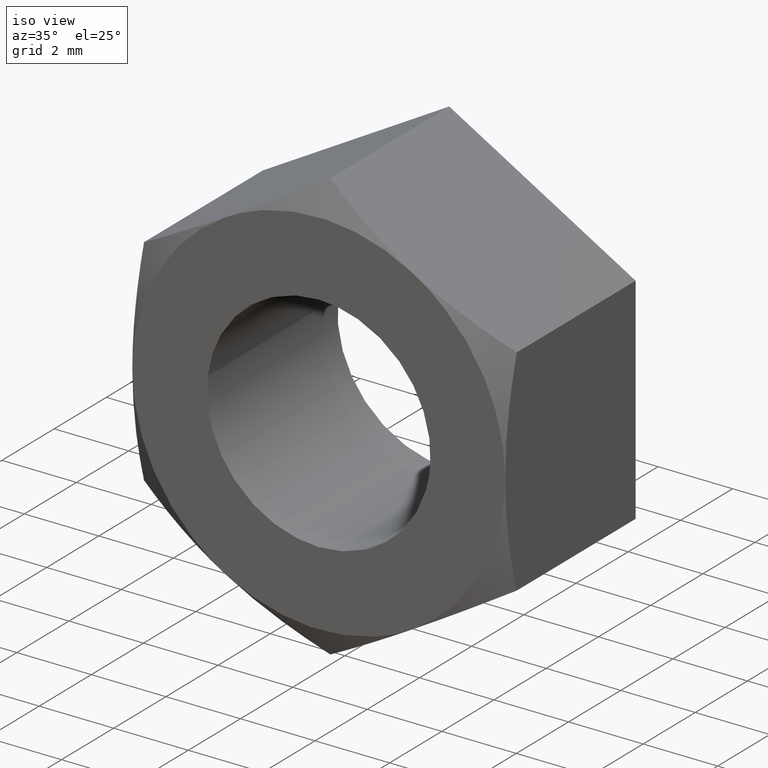
[diagram: clean part render]
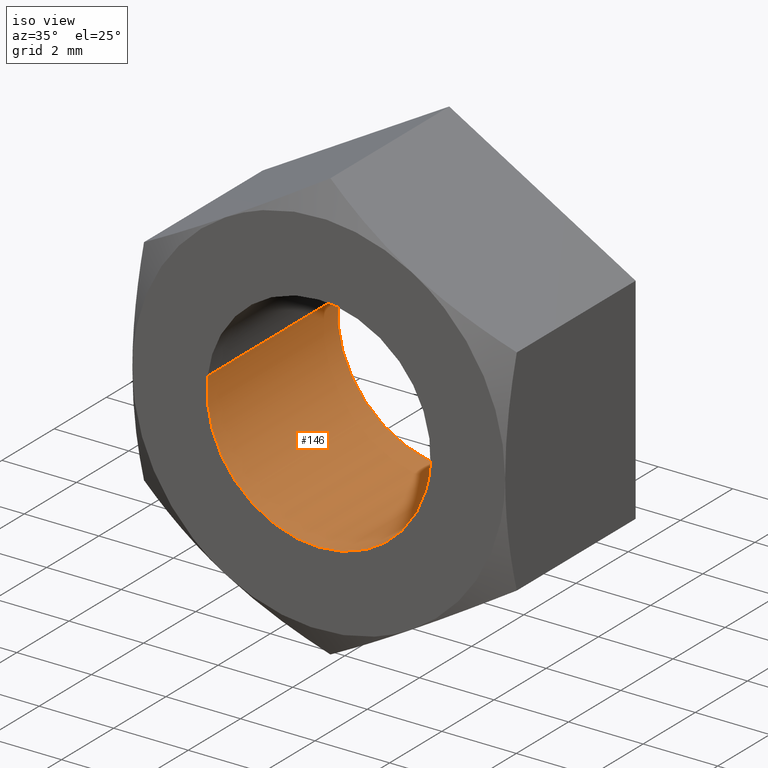
[diagram: same view with one face highlighted and labeled with its STEP entity id]
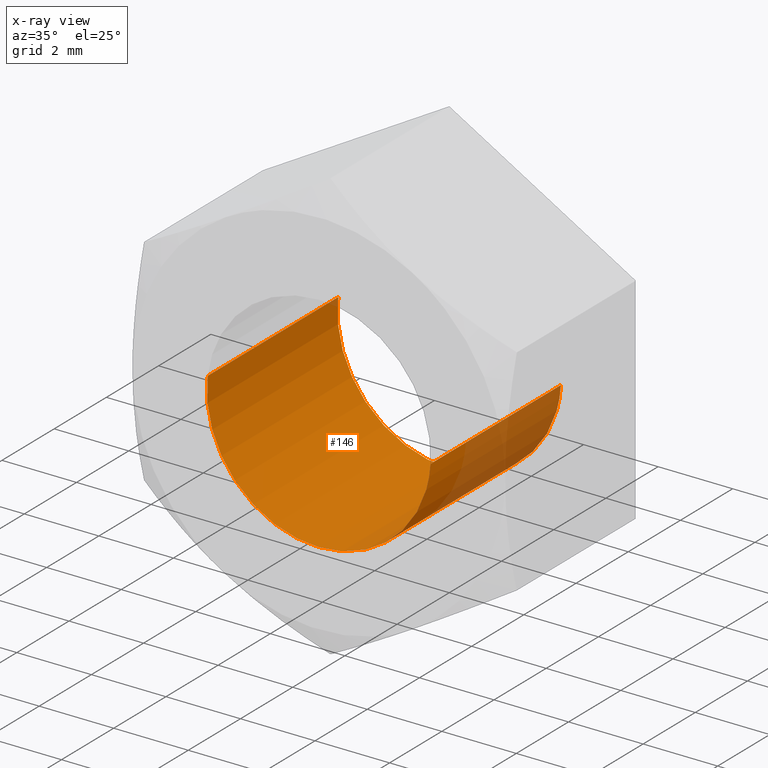
[diagram: x-ray of the same camera — body ghosted, the highlighted face saturated]
A machine part, iso view. The second image highlights one B-rep face of the part: STEP entity #146.
The next image is the same camera in x-ray: the body ghosted, the highlighted face saturated — about 12% of this face is hidden behind the body in this view.
In plain terms, the highlighted face is a freeform B-spline surface patch.
Its self-contained STEP definition (entity closure, byte-faithful):
#44=CARTESIAN_POINT('',(-2.979028579091000,0.125000000000000,0.354102703970275));
#45=CARTESIAN_POINT('',(-2.989162846345817,0.125000000000000,0.268844185913933));
#46=CARTESIAN_POINT('',(-2.994404395265600,0.125000000000000,0.183145618604571));
#47=CARTESIAN_POINT('',(-3.177550013870171,0.125000000000000,-2.811258776661029));
#48=CARTESIAN_POINT('',(-0.183145618604571,0.125000000000000,-2.994404395265600));
#49=CARTESIAN_POINT('',(2.811258776661029,0.125000000000000,-3.177550013870171));
#50=CARTESIAN_POINT('',(2.994404395265600,0.125000000000000,-0.183145618604571));
#51=CARTESIAN_POINT('',(-2.979028579091000,-5.128125000000002,0.354102703970275));
#52=CARTESIAN_POINT('',(-2.989162846345817,-5.128125000000001,0.268844185913933));
#53=CARTESIAN_POINT('',(-2.994404395265600,-5.128125000000001,0.183145618604571));
#54=CARTESIAN_POINT('',(-3.177550013870171,-5.128125000000001,-2.811258776661029));
#55=CARTESIAN_POINT('',(-0.183145618604571,-5.128125000000001,-2.994404395265600));
#56=CARTESIAN_POINT('',(2.811258776661029,-5.128125000000001,-3.177550013870171));
#57=CARTESIAN_POINT('',(2.994404395265600,-5.128125000000001,-0.183145618604571));
#65=(BOUNDED_SURFACE()B_SPLINE_SURFACE(2,1,((#44,#51),(#45,#52),(#46,#53),(#47,#54),(#48,#55),(#49,#56),(#50,#57)),.UNSPECIFIED.,.F.,.F.,.U.)B_SPLINE_SURFACE_WITH_KNOTS((3,2,2,3),(2,2),(0.0,0.198822509939086,5.169385258416225,10.139948006893370),(0.0,5.253125000000002),.UNSPECIFIED.)GEOMETRIC_REPRESENTATION_ITEM()RATIONAL_B_SPLINE_SURFACE(((0.977505800795127,0.977505800795127),(0.988284271247462,0.988284271247462),(1.0,1.0),(0.707106781186548,0.707106781186548),(1.0,1.0),(0.707106781186548,0.707106781186548),(1.0,1.0)))REPRESENTATION_ITEM('')SURFACE());
#66=CARTESIAN_POINT('',(-2.979029048847217,-3.904214E-015,0.354098751916197));
#67=VERTEX_POINT('',#66);
#68=CARTESIAN_POINT('',(0.0,0.0,-3.0));
#69=VERTEX_POINT('',#68);
#70=CARTESIAN_POINT('',(-2.979029048847217,-3.904214E-015,0.354098751916197));
#71=CARTESIAN_POINT('',(-3.0,0.0,0.177670362038779));
#72=CARTESIAN_POINT('',(-3.0,0.0,0.0));
#73=CARTESIAN_POINT('',(-3.0,0.0,-3.0));
#74=CARTESIAN_POINT('',(0.0,0.0,-3.0));
#82=(BOUNDED_CURVE()B_SPLINE_CURVE(2,(#70,#71,#72,#73,#74),.UNSPECIFIED.,.F.,.U.)B_SPLINE_CURVE_WITH_KNOTS((3,2,3),(0.229562697719614,0.250000000000000,0.500000000000000),.UNSPECIFIED.)CURVE()GEOMETRIC_REPRESENTATION_ITEM()RATIONAL_B_SPLINE_CURVE((0.956027193637312,0.976056211004937,1.0,0.707106781186548,1.0))REPRESENTATION_ITEM(''));
#83=EDGE_CURVE('',#67,#69,#82,.T.);
#84=ORIENTED_EDGE('',*,*,#83,.F.);
#85=CARTESIAN_POINT('',(-2.979029043188417,-5.0,0.354098799524145));
#86=VERTEX_POINT('',#85);
#87=CARTESIAN_POINT('',(-2.979029048847217,-3.904214E-015,0.354098751916197));
#88=CARTESIAN_POINT('',(-2.979029043188417,-5.0,0.354098799524145));
#89=QUASI_UNIFORM_CURVE('',1,(#87,#88),.UNSPECIFIED.,.F.,.U.);
#90=EDGE_CURVE('',#67,#86,#89,.T.);
#91=ORIENTED_EDGE('',*,*,#90,.T.);
#92=CARTESIAN_POINT('',(0.0,-5.0,-3.0));
#93=VERTEX_POINT('',#92);
#94=CARTESIAN_POINT('',(-2.979029043188417,-5.0,0.354098799524145));
#95=CARTESIAN_POINT('',(-3.000000000000000,-5.0,0.177670386094396));
#96=CARTESIAN_POINT('',(-3.0,-5.0,0.0));
#97=CARTESIAN_POINT('',(-3.0,-5.000000000000001,-3.0));
#98=CARTESIAN_POINT('',(0.0,-5.0,-3.0));
#106=(BOUNDED_CURVE()B_SPLINE_CURVE(2,(#94,#95,#96,#97,#98),.UNSPECIFIED.,.F.,.U.)B_SPLINE_CURVE_WITH_KNOTS((3,2,3),(0.229562695018767,0.250000000000000,0.500000000000000),.UNSPECIFIED.)CURVE()GEOMETRIC_REPRESENTATION_ITEM()RATIONAL_B_SPLINE_CURVE((0.956027188343531,0.976056207840698,1.0,0.707106781186548,1.0))REPRESENTATION_ITEM(''));
#107=EDGE_CURVE('',#86,#93,#106,.T.);
#108=ORIENTED_EDGE('',*,*,#107,.T.);
#109=CARTESIAN_POINT('',(2.994404452998527,-5.0,-0.183144674674689));
#110=VERTEX_POINT('',#109);
#111=CARTESIAN_POINT('',(0.0,-5.0,-3.0));
#112=CARTESIAN_POINT('',(2.822119983282192,-5.0,-3.0));
#113=CARTESIAN_POINT('',(2.994404452998527,-5.000000000000001,-0.183144674674689));
#121=(BOUNDED_CURVE()B_SPLINE_CURVE(2,(#111,#112,#113),.UNSPECIFIED.,.F.,.U.)B_SPLINE_CURVE_WITH_KNOTS((3,3),(0.500000000000000,0.739333071026264),.UNSPECIFIED.)CURVE()GEOMETRIC_REPRESENTATION_ITEM()RATIONAL_B_SPLINE_CURVE((1.0,0.719603865834435,0.976072274818767))REPRESENTATION_ITEM(''));
#122=EDGE_CURVE('',#93,#110,#121,.T.);
#123=ORIENTED_EDGE('',*,*,#122,.T.);
#124=CARTESIAN_POINT('',(2.994404453701684,-1.568190E-015,-0.183144663178055));
#125=VERTEX_POINT('',#124);
#126=CARTESIAN_POINT('',(2.994404453701684,-1.568190E-015,-0.183144663178055));
#127=CARTESIAN_POINT('',(2.994404452998527,-5.0,-0.183144674674689));
#128=QUASI_UNIFORM_CURVE('',1,(#126,#127),.UNSPECIFIED.,.F.,.U.);
#129=EDGE_CURVE('',#125,#110,#128,.T.);
#130=ORIENTED_EDGE('',*,*,#129,.F.);
#131=CARTESIAN_POINT('',(0.0,0.0,-3.0));
#132=CARTESIAN_POINT('',(2.822120004993013,0.0,-3.000000000000001));
#133=CARTESIAN_POINT('',(2.994404453701684,-1.568190E-015,-0.183144663178055));
#141=(BOUNDED_CURVE()B_SPLINE_CURVE(2,(#131,#132,#133),.UNSPECIFIED.,.F.,.U.)B_SPLINE_CURVE_WITH_KNOTS((3,3),(0.500000000000000,0.739333072351207),.UNSPECIFIED.)CURVE()GEOMETRIC_REPRESENTATION_ITEM()RATIONAL_B_SPLINE_CURVE((1.0,0.719603864282169,0.976072277658373))REPRESENTATION_ITEM(''));
#142=EDGE_CURVE('',#69,#125,#141,.T.);
#143=ORIENTED_EDGE('',*,*,#142,.F.);
#144=EDGE_LOOP('',(#84,#91,#108,#123,#130,#143));
#145=FACE_OUTER_BOUND('',#144,.T.);
#146=ADVANCED_FACE('',(#145),#65,.F.);